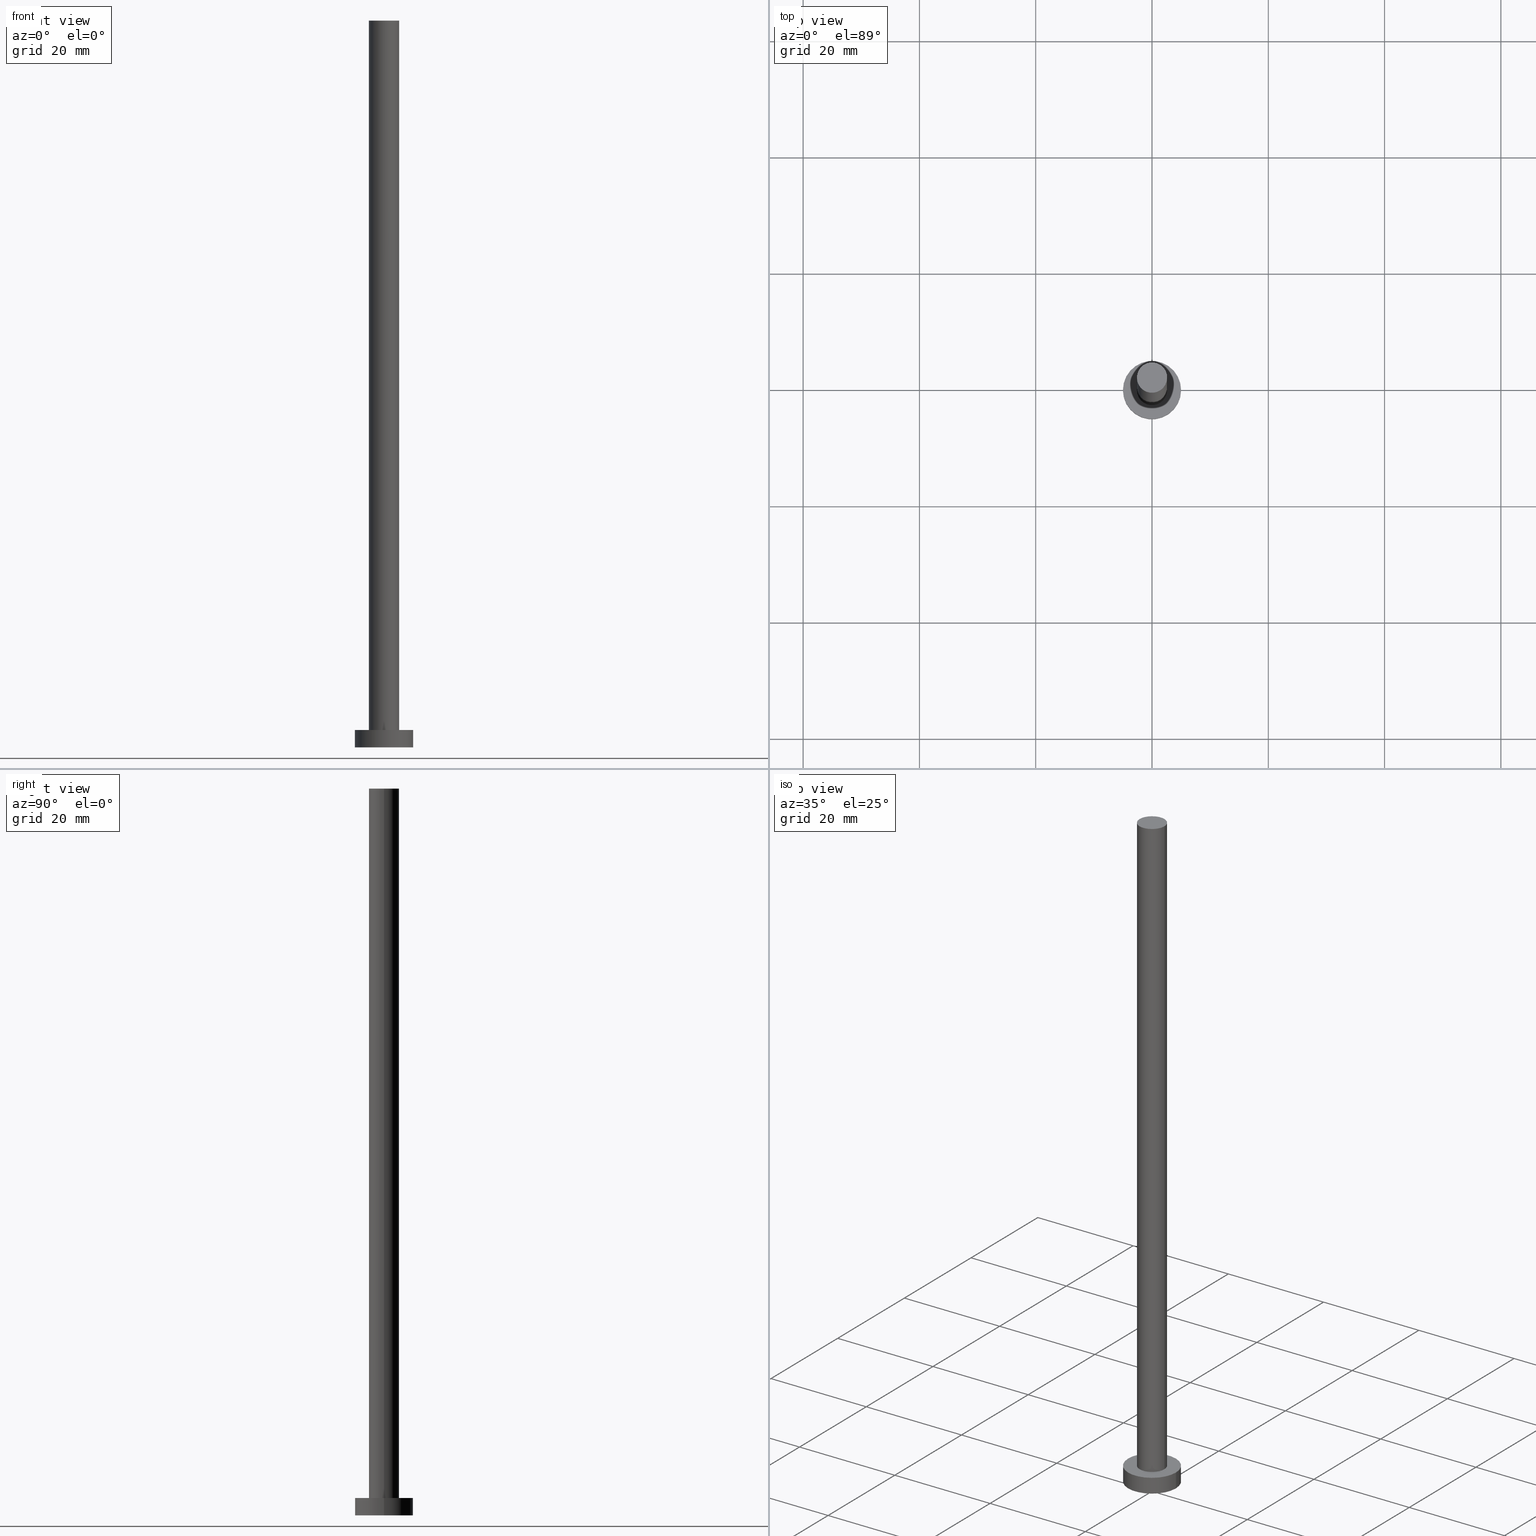
[diagram: canonical four-view strip — front | top / right | iso, engineering-drawing reading convention]
A machine part, canonical four-view strip (front | top / right | iso — engineering-drawing reading convention). The complete STEP part file that produces these views, byte-faithful:
ISO-10303-21;
HEADER;
FILE_DESCRIPTION (( 'STEP AP203' ),
    '1' );
FILE_NAME ('d1f8.STEP',
    '2023-02-13T13:25:03',
    ( '' ),
    ( '' ),
    'SwSTEP 2.0',
    'SolidWorks 2019',
    '' );
FILE_SCHEMA (( 'CONFIG_CONTROL_DESIGN' ));
ENDSEC;

DATA;
#1 = CLOSED_SHELL ( 'NONE', ( #107, #157, #13, #78, #189, #222, #233 ) ) ;
#2 = DIRECTION ( 'NONE',  ( 1.000000000000000000, 0.000000000000000000, 0.000000000000000000 ) ) ;
#3 = AXIS2_PLACEMENT_3D ( 'NONE', #152, #58, #172 ) ;
#4 = SHAPE_DEFINITION_REPRESENTATION ( #132, #206 ) ;
#5 = CIRCLE ( 'NONE', #147, 2.600000000000000089 ) ;
#6 = AXIS2_PLACEMENT_3D ( 'NONE', #53, #135, #193 ) ;
#7 = PERSON_AND_ORGANIZATION ( #230, #245 ) ;
#8 = APPROVAL_STATUS ( 'not_yet_approved' ) ;
#9 = CC_DESIGN_SECURITY_CLASSIFICATION ( #153, ( #46 ) ) ;
#10 = APPROVAL_STATUS ( 'not_yet_approved' ) ;
#11 = EDGE_LOOP ( 'NONE', ( #244, #170, #223, #49 ) ) ;
#12 = CARTESIAN_POINT ( 'NONE',  ( 5.000000000000000000, 6.123233995736766282E-16, 3.000000000000000000 ) ) ;
#13 = ADVANCED_FACE ( 'NONE', ( #205 ), #148, .T. ) ;
#14 = DIRECTION ( 'NONE',  ( -0.000000000000000000, -0.000000000000000000, -1.000000000000000000 ) ) ;
#15 = APPROVAL ( #10, 'NEUR�EN�' ) ;
#16 = DIRECTION ( 'NONE',  ( 0.000000000000000000, 0.000000000000000000, 1.000000000000000000 ) ) ;
#17 = ORIENTED_EDGE ( 'NONE', *, *, #155, .F. ) ;
#18 = MANIFOLD_SOLID_BREP ( 'P�idat vysunut�m3', #1 ) ;
#19 = DIRECTION ( 'NONE',  ( -0.000000000000000000, -0.000000000000000000, -1.000000000000000000 ) ) ;
#20 = DIRECTION ( 'NONE',  ( 1.000000000000000000, 0.000000000000000000, -0.000000000000000000 ) ) ;
#21 = VECTOR ( 'NONE', #19, 1000.000000000000000 ) ;
#22 = DIRECTION ( 'NONE',  ( 1.000000000000000000, 0.000000000000000000, -0.000000000000000000 ) ) ;
#23 = CC_DESIGN_PERSON_AND_ORGANIZATION_ASSIGNMENT ( #203, #140, ( #46 ) ) ;
#24 = DIRECTION ( 'NONE',  ( -0.000000000000000000, -0.000000000000000000, -1.000000000000000000 ) ) ;
#25 = PERSON_AND_ORGANIZATION_ROLE ( 'creator' ) ;
#26 = PERSON_AND_ORGANIZATION_ROLE ( 'creator' ) ;
#27 = ORIENTED_EDGE ( 'NONE', *, *, #84, .T. ) ;
#28 = APPROVAL_STATUS ( 'not_yet_approved' ) ;
#29 = PERSON_AND_ORGANIZATION_ROLE ( 'classification_officer' ) ;
#30 = VERTEX_POINT ( 'NONE', #186 ) ;
#31 = AXIS2_PLACEMENT_3D ( 'NONE', #204, #248, #105 ) ;
#32 = VERTEX_POINT ( 'NONE', #229 ) ;
#33 = AXIS2_PLACEMENT_3D ( 'NONE', #116, #197, #2 ) ;
#34 = LINE ( 'NONE', #111, #212 ) ;
#35 = CARTESIAN_POINT ( 'NONE',  ( -2.600000000000000089, 0.000000000000000000, 125.0000000000000000 ) ) ;
#36 = AXIS2_PLACEMENT_3D ( 'NONE', #71, #226, #130 ) ;
#37 = CARTESIAN_POINT ( 'NONE',  ( 2.600000000000000089, 3.184081677783117698E-16, 3.000000000000000000 ) ) ;
#38 = EDGE_LOOP ( 'NONE', ( #221, #66, #113, #52 ) ) ;
#39 =( NAMED_UNIT ( * ) SI_UNIT ( $, .STERADIAN. ) SOLID_ANGLE_UNIT ( ) );
#40 = CARTESIAN_POINT ( 'NONE',  ( 0.000000000000000000, 0.000000000000000000, 0.000000000000000000 ) ) ;
#41 = CC_DESIGN_APPROVAL ( #65, ( #101 ) ) ;
#42 = PERSON_AND_ORGANIZATION ( #230, #245 ) ;
#43 = DATE_AND_TIME ( #241, #228 ) ;
#44 = APPROVAL_ROLE ( '' ) ;
#45 = EDGE_LOOP ( 'NONE', ( #106, #17 ) ) ;
#46 = PRODUCT_DEFINITION_FORMATION_WITH_SPECIFIED_SOURCE ( 'LIBOVOLN�', '', #251, .NOT_KNOWN. ) ;
#47 = VERTEX_POINT ( 'NONE', #37 ) ;
#48 = FACE_BOUND ( 'NONE', #45, .T. ) ;
#49 = ORIENTED_EDGE ( 'NONE', *, *, #220, .T. ) ;
#50 = AXIS2_PLACEMENT_3D ( 'NONE', #60, #211, #156 ) ;
#51 = DIRECTION ( 'NONE',  ( -0.000000000000000000, -0.000000000000000000, -1.000000000000000000 ) ) ;
#52 = ORIENTED_EDGE ( 'NONE', *, *, #67, .T. ) ;
#53 = CARTESIAN_POINT ( 'NONE',  ( 0.000000000000000000, 0.000000000000000000, 3.000000000000000000 ) ) ;
#54 = CARTESIAN_POINT ( 'NONE',  ( 0.000000000000000000, 0.000000000000000000, 0.000000000000000000 ) ) ;
#55 = AXIS2_PLACEMENT_3D ( 'NONE', #214, #174, #138 ) ;
#56 = DESIGN_CONTEXT ( 'detailed design', #224, 'design' ) ;
#57 = DIRECTION ( 'NONE',  ( 0.000000000000000000, 0.000000000000000000, 1.000000000000000000 ) ) ;
#58 = DIRECTION ( 'NONE',  ( 0.000000000000000000, 0.000000000000000000, 1.000000000000000000 ) ) ;
#59 = AXIS2_PLACEMENT_3D ( 'NONE', #54, #90, #134 ) ;
#60 = CARTESIAN_POINT ( 'NONE',  ( 0.000000000000000000, 0.000000000000000000, 125.0000000000000000 ) ) ;
#61 = DATE_AND_TIME ( #123, #121 ) ;
#62 = DATE_AND_TIME ( #102, #200 ) ;
#63 = EDGE_CURVE ( 'NONE', #227, #32, #34, .T. ) ;
#64 = CIRCLE ( 'NONE', #31, 5.000000000000000000 ) ;
#65 = APPROVAL ( #28, 'NEUR�EN�' ) ;
#66 = ORIENTED_EDGE ( 'NONE', *, *, #144, .F. ) ;
#67 = EDGE_CURVE ( 'NONE', #30, #47, #5, .T. ) ;
#68 = CARTESIAN_POINT ( 'NONE',  ( 0.000000000000000000, 0.000000000000000000, 3.000000000000000000 ) ) ;
#69 = FACE_OUTER_BOUND ( 'NONE', #104, .T. ) ;
#70 = AXIS2_PLACEMENT_3D ( 'NONE', #176, #57, #20 ) ;
#71 = CARTESIAN_POINT ( 'NONE',  ( 0.000000000000000000, 0.000000000000000000, 125.0000000000000000 ) ) ;
#72 = DIRECTION ( 'NONE',  ( 1.000000000000000000, 0.000000000000000000, 0.000000000000000000 ) ) ;
#73 = CYLINDRICAL_SURFACE ( 'NONE', #194, 5.000000000000000000 ) ;
#74 = EDGE_CURVE ( 'NONE', #227, #210, #64, .T. ) ;
#75 = CARTESIAN_POINT ( 'NONE',  ( 0.000000000000000000, 0.000000000000000000, 3.000000000000000000 ) ) ;
#76 = CARTESIAN_POINT ( 'NONE',  ( 5.000000000000000000, 6.123233995736766282E-16, 3.000000000000000000 ) ) ;
#77 = APPROVAL_PERSON_ORGANIZATION ( #219, #65, #217 ) ;
#78 = ADVANCED_FACE ( 'NONE', ( #48, #69 ), #149, .T. ) ;
#79 = COORDINATED_UNIVERSAL_TIME_OFFSET ( 1, 0, .AHEAD. ) ;
#80 = APPROVAL_DATE_TIME ( #218, #182 ) ;
#81 = CALENDAR_DATE ( 2023, 13, 2 ) ;
#82 = ORIENTED_EDGE ( 'NONE', *, *, #144, .T. ) ;
#83 = ORIENTED_EDGE ( 'NONE', *, *, #63, .F. ) ;
#84 = EDGE_CURVE ( 'NONE', #210, #88, #171, .T. ) ;
#85 = LOCAL_TIME ( 14, 25, 3.000000000000000000, #178 ) ;
#86 = CARTESIAN_POINT ( 'NONE',  ( 5.000000000000000000, 6.123233995736766282E-16, 0.000000000000000000 ) ) ;
#87 = CARTESIAN_POINT ( 'NONE',  ( 0.000000000000000000, 0.000000000000000000, 3.000000000000000000 ) ) ;
#88 = VERTEX_POINT ( 'NONE', #86 ) ;
#89 = FACE_OUTER_BOUND ( 'NONE', #168, .T. ) ;
#90 = DIRECTION ( 'NONE',  ( 0.000000000000000000, 0.000000000000000000, 1.000000000000000000 ) ) ;
#91 = CC_DESIGN_DATE_AND_TIME_ASSIGNMENT ( #61, #183, ( #101 ) ) ;
#92 = PLANE ( 'NONE',  #252 ) ;
#93 = MECHANICAL_CONTEXT ( 'NONE', #249, 'mechanical' ) ;
#94 = CARTESIAN_POINT ( 'NONE',  ( -5.000000000000000000, 0.000000000000000000, 3.000000000000000000 ) ) ;
#95 = PERSON_AND_ORGANIZATION ( #230, #245 ) ;
#96 = CC_DESIGN_APPROVAL ( #15, ( #46 ) ) ;
#97 = APPROVAL_ROLE ( '' ) ;
#98 = ORIENTED_EDGE ( 'NONE', *, *, #125, .F. ) ;
#99 = AXIS2_PLACEMENT_3D ( 'NONE', #68, #188, #127 ) ;
#100 = SECURITY_CLASSIFICATION_LEVEL ( 'unclassified' ) ;
#101 = PRODUCT_DEFINITION ( 'NEZN�M�', '', #46, #56 ) ;
#102 = CALENDAR_DATE ( 2023, 13, 2 ) ;
#103 = AXIS2_PLACEMENT_3D ( 'NONE', #75, #236, #235 ) ;
#104 = EDGE_LOOP ( 'NONE', ( #133, #243 ) ) ;
#105 = DIRECTION ( 'NONE',  ( 1.000000000000000000, 0.000000000000000000, 0.000000000000000000 ) ) ;
#106 = ORIENTED_EDGE ( 'NONE', *, *, #67, .F. ) ;
#107 = ADVANCED_FACE ( 'NONE', ( #89 ), #246, .T. ) ;
#108 = VECTOR ( 'NONE', #254, 1000.000000000000000 ) ;
#109 = CARTESIAN_POINT ( 'NONE',  ( 0.000000000000000000, 0.000000000000000000, 125.0000000000000000 ) ) ;
#110 = CC_DESIGN_PERSON_AND_ORGANIZATION_ASSIGNMENT ( #7, #26, ( #46 ) ) ;
#111 = CARTESIAN_POINT ( 'NONE',  ( -5.000000000000000000, 0.000000000000000000, 3.000000000000000000 ) ) ;
#112 = CC_DESIGN_APPROVAL ( #182, ( #153 ) ) ;
#113 = ORIENTED_EDGE ( 'NONE', *, *, #125, .T. ) ;
#114 = CYLINDRICAL_SURFACE ( 'NONE', #55, 2.600000000000000089 ) ;
#115 = FACE_OUTER_BOUND ( 'NONE', #209, .T. ) ;
#116 = CARTESIAN_POINT ( 'NONE',  ( 0.000000000000000000, 0.000000000000000000, 0.000000000000000000 ) ) ;
#117 = CARTESIAN_POINT ( 'NONE',  ( 2.600000000000000089, 3.184081677783117698E-16, 125.0000000000000000 ) ) ;
#118 =( NAMED_UNIT ( * ) PLANE_ANGLE_UNIT ( ) SI_UNIT ( $, .RADIAN. ) );
#119 = PERSON_AND_ORGANIZATION ( #230, #245 ) ;
#120 = ORIENTED_EDGE ( 'NONE', *, *, #167, .T. ) ;
#121 = LOCAL_TIME ( 14, 25, 3.000000000000000000, #124 ) ;
#122 = UNCERTAINTY_MEASURE_WITH_UNIT (LENGTH_MEASURE( 1.000000000000000082E-05 ), #173, 'distance_accuracy_value', 'NONE');
#123 = CALENDAR_DATE ( 2023, 13, 2 ) ;
#124 = COORDINATED_UNIVERSAL_TIME_OFFSET ( 1, 0, .AHEAD. ) ;
#125 = EDGE_CURVE ( 'NONE', #185, #30, #207, .T. ) ;
#126 = ORIENTED_EDGE ( 'NONE', *, *, #180, .F. ) ;
#127 = DIRECTION ( 'NONE',  ( 1.000000000000000000, 0.000000000000000000, -0.000000000000000000 ) ) ;
#128 = ORIENTED_EDGE ( 'NONE', *, *, #220, .F. ) ;
#129 = APPROVAL_PERSON_ORGANIZATION ( #119, #15, #44 ) ;
#130 = DIRECTION ( 'NONE',  ( -1.000000000000000000, 0.000000000000000000, 0.000000000000000000 ) ) ;
#131 = ORIENTED_EDGE ( 'NONE', *, *, #177, .F. ) ;
#132 = PRODUCT_DEFINITION_SHAPE ( 'NONE', 'NONE',  #101 ) ;
#133 = ORIENTED_EDGE ( 'NONE', *, *, #74, .T. ) ;
#134 = DIRECTION ( 'NONE',  ( 1.000000000000000000, 0.000000000000000000, 0.000000000000000000 ) ) ;
#135 = DIRECTION ( 'NONE',  ( 0.000000000000000000, 0.000000000000000000, 1.000000000000000000 ) ) ;
#136 = FACE_OUTER_BOUND ( 'NONE', #38, .T. ) ;
#137 = CIRCLE ( 'NONE', #59, 5.000000000000000000 ) ;
#138 = DIRECTION ( 'NONE',  ( -1.000000000000000000, 0.000000000000000000, 0.000000000000000000 ) ) ;
#139 = CC_DESIGN_PERSON_AND_ORGANIZATION_ASSIGNMENT ( #42, #164, ( #251 ) ) ;
#140 = PERSON_AND_ORGANIZATION_ROLE ( 'design_supplier' ) ;
#141 = DATE_AND_TIME ( #81, #191 ) ;
#142 = CIRCLE ( 'NONE', #175, 2.600000000000000089 ) ;
#143 = COORDINATED_UNIVERSAL_TIME_OFFSET ( 1, 0, .AHEAD. ) ;
#144 = EDGE_CURVE ( 'NONE', #185, #187, #142, .T. ) ;
#145 = PERSON_AND_ORGANIZATION ( #230, #245 ) ;
#146 = DIRECTION ( 'NONE',  ( -1.000000000000000000, 0.000000000000000000, 0.000000000000000000 ) ) ;
#147 = AXIS2_PLACEMENT_3D ( 'NONE', #87, #150, #190 ) ;
#148 = CYLINDRICAL_SURFACE ( 'NONE', #242, 5.000000000000000000 ) ;
#149 = PLANE ( 'NONE',  #99 ) ;
#150 = DIRECTION ( 'NONE',  ( 0.000000000000000000, 0.000000000000000000, 1.000000000000000000 ) ) ;
#151 = CC_DESIGN_DATE_AND_TIME_ASSIGNMENT ( #43, #181, ( #153 ) ) ;
#152 = CARTESIAN_POINT ( 'NONE',  ( 0.000000000000000000, 0.000000000000000000, 0.000000000000000000 ) ) ;
#153 = SECURITY_CLASSIFICATION ( '', '', #100 ) ;
#154 = DIRECTION ( 'NONE',  ( -1.000000000000000000, 0.000000000000000000, 0.000000000000000000 ) ) ;
#155 = EDGE_CURVE ( 'NONE', #47, #30, #208, .T. ) ;
#156 = DIRECTION ( 'NONE',  ( 1.000000000000000000, 0.000000000000000000, 0.000000000000000000 ) ) ;
#157 = ADVANCED_FACE ( 'NONE', ( #237 ), #73, .T. ) ;
#158 = APPLICATION_PROTOCOL_DEFINITION ( 'international standard', 'config_control_design', 1994, #249 ) ;
#159 = DIRECTION ( 'NONE',  ( 0.000000000000000000, 0.000000000000000000, 1.000000000000000000 ) ) ;
#160 =( GEOMETRIC_REPRESENTATION_CONTEXT ( 3 ) GLOBAL_UNCERTAINTY_ASSIGNED_CONTEXT ( ( #122 ) ) GLOBAL_UNIT_ASSIGNED_CONTEXT ( ( #173, #118, #39 ) ) REPRESENTATION_CONTEXT ( 'NONE', 'WORKASPACE' ) );
#161 = EDGE_CURVE ( 'NONE', #88, #32, #162, .T. ) ;
#162 = CIRCLE ( 'NONE', #3, 5.000000000000000000 ) ;
#163 = CIRCLE ( 'NONE', #50, 2.600000000000000089 ) ;
#164 = PERSON_AND_ORGANIZATION_ROLE ( 'design_owner' ) ;
#165 = APPROVAL_DATE_TIME ( #62, #65 ) ;
#166 = ORIENTED_EDGE ( 'NONE', *, *, #161, .F. ) ;
#167 = EDGE_CURVE ( 'NONE', #187, #47, #255, .T. ) ;
#168 = EDGE_LOOP ( 'NONE', ( #131, #120, #192, #98 ) ) ;
#169 = DIRECTION ( 'NONE',  ( -0.000000000000000000, -0.000000000000000000, -1.000000000000000000 ) ) ;
#170 = ORIENTED_EDGE ( 'NONE', *, *, #74, .F. ) ;
#171 = LINE ( 'NONE', #12, #247 ) ;
#172 = DIRECTION ( 'NONE',  ( 1.000000000000000000, 0.000000000000000000, 0.000000000000000000 ) ) ;
#173 =( LENGTH_UNIT ( ) NAMED_UNIT ( * ) SI_UNIT ( .MILLI., .METRE. ) );
#174 = DIRECTION ( 'NONE',  ( -0.000000000000000000, -0.000000000000000000, -1.000000000000000000 ) ) ;
#175 = AXIS2_PLACEMENT_3D ( 'NONE', #109, #16, #72 ) ;
#176 = CARTESIAN_POINT ( 'NONE',  ( 0.000000000000000000, 0.000000000000000000, 125.0000000000000000 ) ) ;
#177 = EDGE_CURVE ( 'NONE', #187, #185, #163, .T. ) ;
#178 = COORDINATED_UNIVERSAL_TIME_OFFSET ( 1, 0, .AHEAD. ) ;
#179 = PERSON_AND_ORGANIZATION ( #230, #245 ) ;
#180 = EDGE_CURVE ( 'NONE', #210, #227, #196, .T. ) ;
#181 = DATE_TIME_ROLE ( 'classification_date' ) ;
#182 = APPROVAL ( #8, 'NEUR�EN�' ) ;
#183 = DATE_TIME_ROLE ( 'creation_date' ) ;
#184 = ORIENTED_EDGE ( 'NONE', *, *, #161, .T. ) ;
#185 = VERTEX_POINT ( 'NONE', #195 ) ;
#186 = CARTESIAN_POINT ( 'NONE',  ( -2.600000000000000089, 0.000000000000000000, 3.000000000000000000 ) ) ;
#187 = VERTEX_POINT ( 'NONE', #117 ) ;
#188 = DIRECTION ( 'NONE',  ( 0.000000000000000000, 0.000000000000000000, 1.000000000000000000 ) ) ;
#189 = ADVANCED_FACE ( 'NONE', ( #198 ), #92, .F. ) ;
#190 = DIRECTION ( 'NONE',  ( 1.000000000000000000, 0.000000000000000000, 0.000000000000000000 ) ) ;
#191 = LOCAL_TIME ( 14, 25, 3.000000000000000000, #202 ) ;
#192 = ORIENTED_EDGE ( 'NONE', *, *, #155, .T. ) ;
#193 = DIRECTION ( 'NONE',  ( 1.000000000000000000, 0.000000000000000000, 0.000000000000000000 ) ) ;
#194 = AXIS2_PLACEMENT_3D ( 'NONE', #213, #24, #154 ) ;
#195 = CARTESIAN_POINT ( 'NONE',  ( -2.600000000000000089, 0.000000000000000000, 125.0000000000000000 ) ) ;
#196 = CIRCLE ( 'NONE', #103, 5.000000000000000000 ) ;
#197 = DIRECTION ( 'NONE',  ( 0.000000000000000000, 0.000000000000000000, 1.000000000000000000 ) ) ;
#198 = FACE_OUTER_BOUND ( 'NONE', #201, .T. ) ;
#199 = APPROVAL_DATE_TIME ( #141, #15 ) ;
#200 = LOCAL_TIME ( 14, 25, 3.000000000000000000, #143 ) ;
#201 = EDGE_LOOP ( 'NONE', ( #128, #166 ) ) ;
#202 = COORDINATED_UNIVERSAL_TIME_OFFSET ( 1, 0, .AHEAD. ) ;
#203 = PERSON_AND_ORGANIZATION ( #230, #245 ) ;
#204 = CARTESIAN_POINT ( 'NONE',  ( 0.000000000000000000, 0.000000000000000000, 3.000000000000000000 ) ) ;
#205 = FACE_OUTER_BOUND ( 'NONE', #11, .T. ) ;
#206 = ADVANCED_BREP_SHAPE_REPRESENTATION ( 'd1f8', ( #18, #33 ), #160 ) ;
#207 = LINE ( 'NONE', #35, #108 ) ;
#208 = CIRCLE ( 'NONE', #6, 2.600000000000000089 ) ;
#209 = EDGE_LOOP ( 'NONE', ( #82, #232 ) ) ;
#210 = VERTEX_POINT ( 'NONE', #76 ) ;
#211 = DIRECTION ( 'NONE',  ( 0.000000000000000000, 0.000000000000000000, 1.000000000000000000 ) ) ;
#212 = VECTOR ( 'NONE', #169, 1000.000000000000000 ) ;
#213 = CARTESIAN_POINT ( 'NONE',  ( 0.000000000000000000, 0.000000000000000000, 3.000000000000000000 ) ) ;
#214 = CARTESIAN_POINT ( 'NONE',  ( 0.000000000000000000, 0.000000000000000000, 125.0000000000000000 ) ) ;
#215 = CC_DESIGN_PERSON_AND_ORGANIZATION_ASSIGNMENT ( #145, #25, ( #101 ) ) ;
#216 = PLANE ( 'NONE',  #70 ) ;
#217 = APPROVAL_ROLE ( '' ) ;
#218 = DATE_AND_TIME ( #239, #85 ) ;
#219 = PERSON_AND_ORGANIZATION ( #230, #245 ) ;
#220 = EDGE_CURVE ( 'NONE', #32, #88, #137, .T. ) ;
#221 = ORIENTED_EDGE ( 'NONE', *, *, #167, .F. ) ;
#222 = ADVANCED_FACE ( 'NONE', ( #136 ), #114, .T. ) ;
#223 = ORIENTED_EDGE ( 'NONE', *, *, #63, .T. ) ;
#224 = APPLICATION_CONTEXT ( 'configuration controlled 3d designs of mechanical parts and assemblies' ) ;
#225 = EDGE_LOOP ( 'NONE', ( #126, #27, #184, #83 ) ) ;
#226 = DIRECTION ( 'NONE',  ( -0.000000000000000000, -0.000000000000000000, -1.000000000000000000 ) ) ;
#227 = VERTEX_POINT ( 'NONE', #94 ) ;
#228 = LOCAL_TIME ( 14, 25, 3.000000000000000000, #79 ) ;
#229 = CARTESIAN_POINT ( 'NONE',  ( -5.000000000000000000, 0.000000000000000000, 0.000000000000000000 ) ) ;
#230 = PERSON ( 'NEUR�EN�', 'NEUR�EN�', 'NEUR�EN�', ('NEUR�EN�'), ('NEUR�EN�'), ('NEUR�EN�') ) ;
#231 = CC_DESIGN_PERSON_AND_ORGANIZATION_ASSIGNMENT ( #95, #29, ( #153 ) ) ;
#232 = ORIENTED_EDGE ( 'NONE', *, *, #177, .T. ) ;
#233 = ADVANCED_FACE ( 'NONE', ( #115 ), #216, .T. ) ;
#234 = CARTESIAN_POINT ( 'NONE',  ( 2.600000000000000089, 3.184081677783117698E-16, 125.0000000000000000 ) ) ;
#235 = DIRECTION ( 'NONE',  ( 1.000000000000000000, 0.000000000000000000, 0.000000000000000000 ) ) ;
#236 = DIRECTION ( 'NONE',  ( 0.000000000000000000, 0.000000000000000000, 1.000000000000000000 ) ) ;
#237 = FACE_OUTER_BOUND ( 'NONE', #225, .T. ) ;
#238 = PRODUCT_RELATED_PRODUCT_CATEGORY ( 'detail', '', ( #251 ) ) ;
#239 = CALENDAR_DATE ( 2023, 13, 2 ) ;
#240 = APPLICATION_PROTOCOL_DEFINITION ( 'international standard', 'config_control_design', 1994, #224 ) ;
#241 = CALENDAR_DATE ( 2023, 13, 2 ) ;
#242 = AXIS2_PLACEMENT_3D ( 'NONE', #250, #14, #146 ) ;
#243 = ORIENTED_EDGE ( 'NONE', *, *, #180, .T. ) ;
#244 = ORIENTED_EDGE ( 'NONE', *, *, #84, .F. ) ;
#245 = ORGANIZATION ( 'NEUR�EN�', 'NEUR�EN�', '' ) ;
#246 = CYLINDRICAL_SURFACE ( 'NONE', #36, 2.600000000000000089 ) ;
#247 = VECTOR ( 'NONE', #51, 1000.000000000000000 ) ;
#248 = DIRECTION ( 'NONE',  ( 0.000000000000000000, 0.000000000000000000, 1.000000000000000000 ) ) ;
#249 = APPLICATION_CONTEXT ( 'configuration controlled 3d designs of mechanical parts and assemblies' ) ;
#250 = CARTESIAN_POINT ( 'NONE',  ( 0.000000000000000000, 0.000000000000000000, 3.000000000000000000 ) ) ;
#251 = PRODUCT ( 'd1f8', 'd1f8', '', ( #93 ) ) ;
#252 = AXIS2_PLACEMENT_3D ( 'NONE', #40, #159, #22 ) ;
#253 = APPROVAL_PERSON_ORGANIZATION ( #179, #182, #97 ) ;
#254 = DIRECTION ( 'NONE',  ( -0.000000000000000000, -0.000000000000000000, -1.000000000000000000 ) ) ;
#255 = LINE ( 'NONE', #234, #21 ) ;
ENDSEC;
END-ISO-10303-21;
